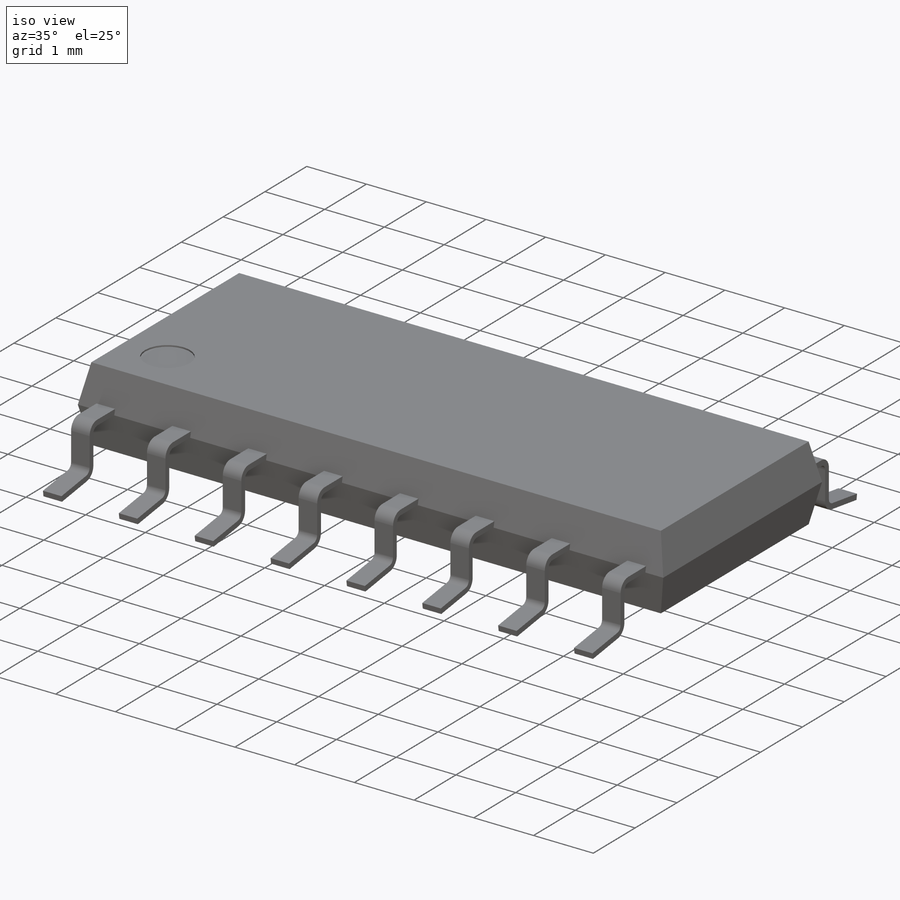
[diagram: iso view]
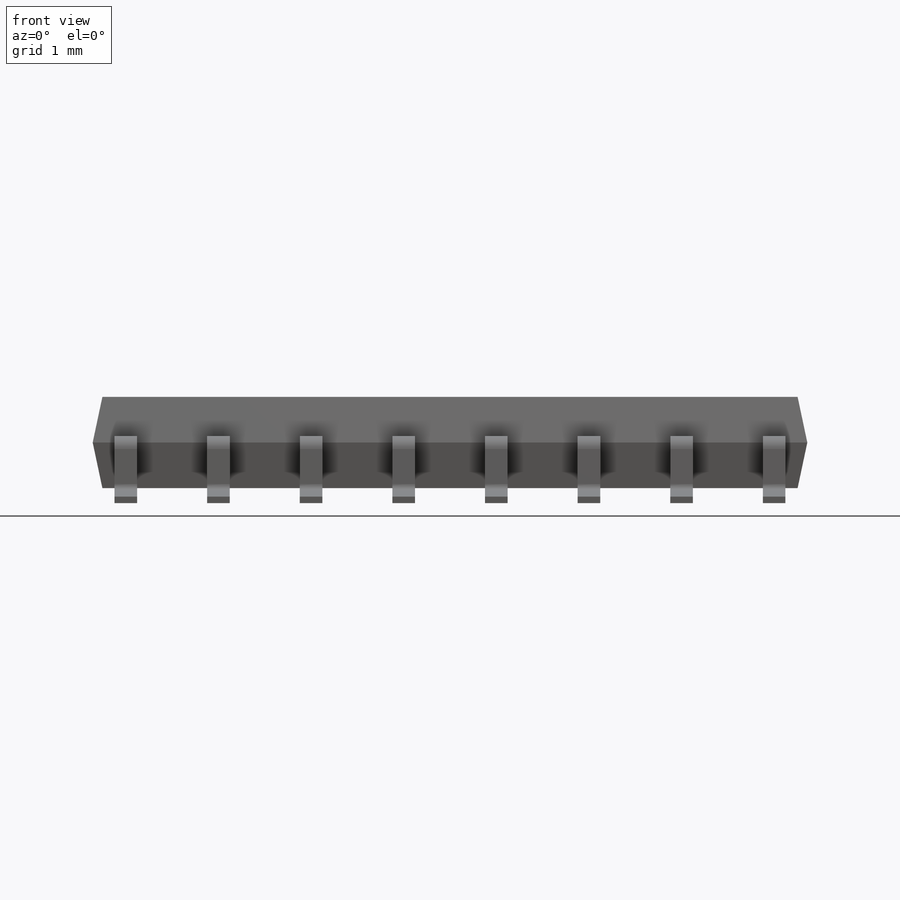
[diagram: front view]
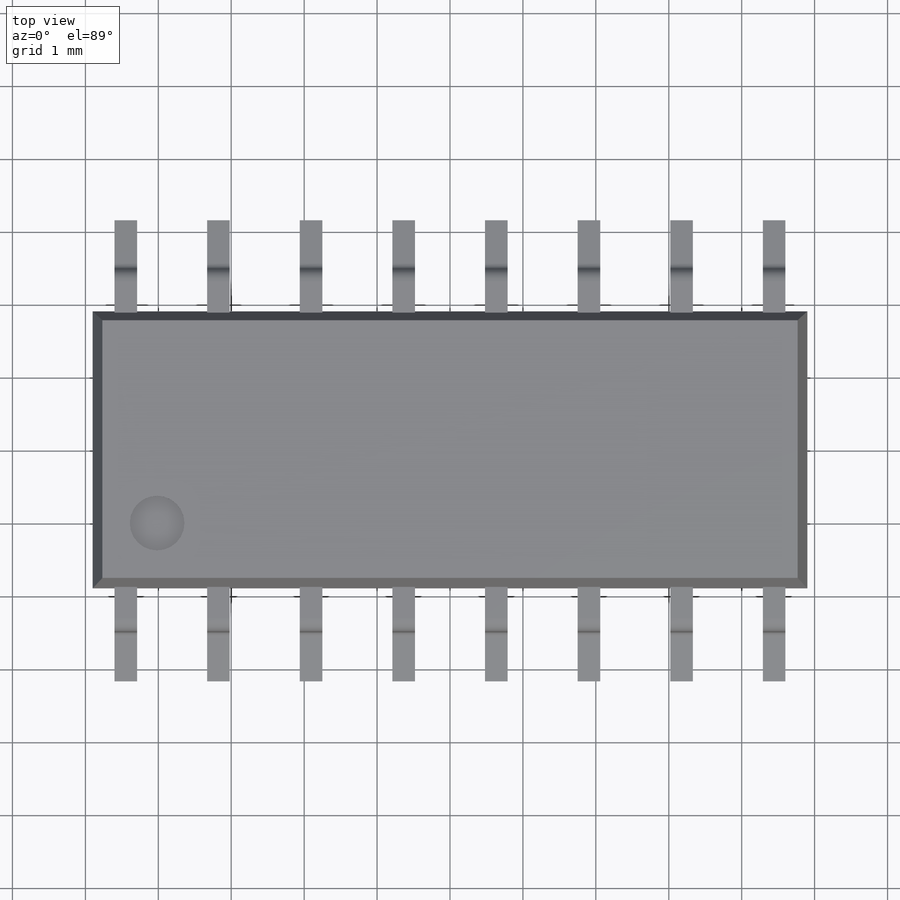
[diagram: top view]
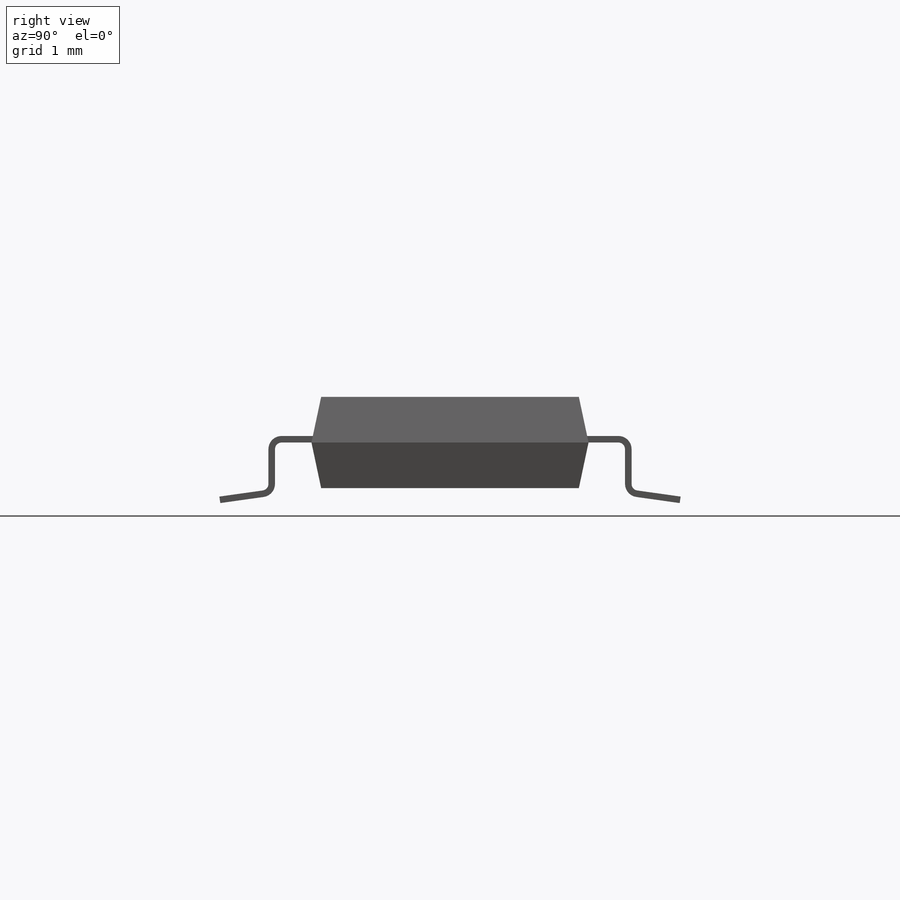
[diagram: right view]
SOLIDWORKS PART (.sldprt)
format: sldprt  version: not decoded by parser v0  size: 1,533,952 bytes
history: native  units: mm
features: sketch x86, sheet_metal_op x44, plane x3, pattern_linear x2, material x1, extrude x1, cut_extrude x1 + 40 further entries (+13 scaffold rows collapsed; 40 parser-record rows omitted)
feature tree (231):
  scaffold x13  (default folders/planes/origin — collapsed)
  material  "Material <not specified>"
  sketch  "Sketch1"  dims[D1=9.8mm D2=3.8mm]
  extrude  "Boss-Extrude1"  Depth=0.625mm
  plane  "Plane1"
  plane  "Plane2"
  plane  "Plane3"  Offset=0.635mm
  sketch  "Sketch2"  dims[c1.D1=~1710.422667mm c1.D2=0.1mm c1.D3=0.5mm c1.D4=0.75mm c1.D5=0.1mm c2.D1=0.09mm c2.D2=0.5 c2.D3=0.0deg c2.D6=~28.64789deg]
  sheet_metal_op  "Base-Flange1"
  sheet_metal_op  "BaseBend2"
  pattern_linear  "LPattern1"  Count1=1 Count2=2 Spacing1=0.09mm Spacing2=1570.796327mm
  sketch  "Sketch58"  dims[D1=~1710.422667mm D2=0.75mm D3=0.5mm D4=0.1mm D5=0.1mm Base-Flange2=0.0]
  sheet_metal_op  "BaseBend3"
  sheet_metal_op  "BaseBend4"
  pattern_linear  "LPattern2"  Count1=1 Count2=2 Spacing1=0.09mm Spacing2=1570.796327mm
  sketch  "Sketch87"  dims[D1=0.75mm D2=0.75mm D3=0.75mm]
  cut_extrude  "Cut-Extrude1"  Depth=0.025mm
  sketch  "Bend-Lines1"
  sketch  "Bounding-Box1"
  sheet_metal_op  "Sheet-Metal2"
  "Flat-Pattern2"
  sketch  "Bend-Lines2"
  sketch  "Bounding-Box2"
  parser-record x40  (decoder bookkeeping rows leaked as tree rows — omitted from the tree; the rows remain in map.json)
  sheet_metal_op  "Sheet-Metal3"
  "Flat-Pattern3"
  sketch  "Bend-Lines3"
  sketch  "Bounding-Box3"
  sheet_metal_op  "Sheet-Metal4"
  "Flat-Pattern4"
  sketch  "Bend-Lines4"
  sketch  "Bounding-Box4"
  sheet_metal_op  "Sheet-Metal5"
  "Flat-Pattern5"
  sketch  "Bend-Lines5"
  sketch  "Bounding-Box5"
  sheet_metal_op  "Sheet-Metal6"
  "Flat-Pattern6"
  sketch  "Bend-Lines6"
  sketch  "Bounding-Box6"
  sheet_metal_op  "Sheet-Metal7"
  "Flat-Pattern7"
  sketch  "Bend-Lines7"
  sketch  "Bounding-Box7"
  sheet_metal_op  "Sheet-Metal8"
  "Flat-Pattern8"
  sketch  "Bend-Lines8"
  sketch  "Bounding-Box8"
  sheet_metal_op  "Sheet-Metal9"
  "Flat-Pattern9"
  sketch  "Bend-Lines9"
  sketch  "Bounding-Box9"
  sheet_metal_op  "Sheet-Metal10"
  "Flat-Pattern10"
  sketch  "Bend-Lines10"
  sketch  "Bounding-Box10"
  sheet_metal_op  "Sheet-Metal11"
  "Flat-Pattern11"
  sketch  "Bend-Lines11"
  sketch  "Bounding-Box11"
  sheet_metal_op  "Sheet-Metal12"
  "Flat-Pattern12"
  sketch  "Bend-Lines12"
  sketch  "Bounding-Box12"
  sheet_metal_op  "Sheet-Metal13"
  "Flat-Pattern13"
  sketch  "Bend-Lines13"
  sketch  "Bounding-Box13"
  sheet_metal_op  "Sheet-Metal14"
  "Flat-Pattern14"
  sketch  "Bend-Lines14"
  sketch  "Bounding-Box14"
  sheet_metal_op  "Sheet-Metal15"
  "Flat-Pattern15"
  sketch  "Bend-Lines15"
  sketch  "Bounding-Box15"
  sheet_metal_op  "Sheet-Metal16"
  "Flat-Pattern16"
  sketch  "Bend-Lines16"
  sketch  "Bounding-Box16"
  sheet_metal_op  "Sheet-Metal17"
  "Flat-Pattern17"
  sketch  "Bend-Lines17"
  sketch  "Bounding-Box17"
  sheet_metal_op  "Sheet-Metal18"
  "Flat-Pattern18"
  sketch  "Bend-Lines18"
  sketch  "Bounding-Box18"
  sheet_metal_op  "Sheet-Metal19"
  "Flat-Pattern19"
  sketch  "Bend-Lines19"
  sketch  "Bounding-Box19"
  sheet_metal_op  "Sheet-Metal20"
  "Flat-Pattern20"
  sketch  "Bend-Lines20"
  sketch  "Bounding-Box20"
  sheet_metal_op  "Sheet-Metal21"
  "Flat-Pattern21"
  sketch  "Bend-Lines21"
  sketch  "Bounding-Box21"
  sheet_metal_op  "Sheet-Metal22"
  "Flat-Pattern22"
  sketch  "Bend-Lines22"
  sketch  "Bounding-Box22"
  sheet_metal_op  "Sheet-Metal23"
  "Flat-Pattern23"
  sketch  "Bend-Lines23"
  sketch  "Bounding-Box23"
  sheet_metal_op  "Sheet-Metal24"
  "Flat-Pattern24"
  sketch  "Bend-Lines24"
  sketch  "Bounding-Box24"
  sheet_metal_op  "Sheet-Metal25"
  "Flat-Pattern25"
  sketch  "Bend-Lines25"
  sketch  "Bounding-Box25"
  sheet_metal_op  "Sheet-Metal26"
  "Flat-Pattern26"
  sketch  "Bend-Lines26"
  sketch  "Bounding-Box26"
  sheet_metal_op  "Sheet-Metal27"
  "Flat-Pattern27"
  sketch  "Bend-Lines27"
  sketch  "Bounding-Box27"
  sheet_metal_op  "Sheet-Metal28"
  "Flat-Pattern28"
  sketch  "Bend-Lines28"
  sketch  "Bounding-Box28"
  sheet_metal_op  "Sheet-Metal29"
  "Flat-Pattern29"
  sketch  "Bend-Lines29"
  sketch  "Bounding-Box29"
  sheet_metal_op  "Sheet-Metal30"
  "Flat-Pattern30"
  sketch  "Bend-Lines30"
  sketch  "Bounding-Box30"
  sheet_metal_op  "Sheet-Metal31"
  "Flat-Pattern31"
  sketch  "Bend-Lines31"
  sketch  "Bounding-Box31"
  sheet_metal_op  "Sheet-Metal32"
  "Flat-Pattern32"
  sketch  "Bend-Lines32"
  sketch  "Bounding-Box32"
  sheet_metal_op  "Sheet-Metal33"
  "Flat-Pattern33"
  sketch  "Bend-Lines33"
  sketch  "Bounding-Box33"
  sheet_metal_op  "Sheet-Metal34"
  "Flat-Pattern34"
  sketch  "Bend-Lines34"
  sketch  "Bounding-Box34"
  sheet_metal_op  "Sheet-Metal35"
  "Flat-Pattern35"
  sketch  "Bend-Lines35"
  sketch  "Bounding-Box35"
  sheet_metal_op  "Sheet-Metal36"
  "Flat-Pattern36"
  sketch  "Bend-Lines36"
  sketch  "Bounding-Box36"
  sheet_metal_op  "Sheet-Metal37"
  "Flat-Pattern37"
  sketch  "Bend-Lines37"
  sketch  "Bounding-Box37"
  sheet_metal_op  "Sheet-Metal38"
  "Flat-Pattern38"
  sketch  "Bend-Lines38"
  sketch  "Bounding-Box38"
  sheet_metal_op  "Sheet-Metal39"
  "Flat-Pattern39"
  sketch  "Bend-Lines39"
  sketch  "Bounding-Box39"
  sheet_metal_op  "Sheet-Metal40"
  "Flat-Pattern40"
  sketch  "Bend-Lines40"
  sketch  "Bounding-Box40"
  sheet_metal_op  "Sheet-Metal41"
  "Flat-Pattern41"
  sketch  "Bend-Lines41"
  sketch  "Bounding-Box41"
decode coverage: 8 of 134 modeling features carry decoded parameters; 40 rows unclassified (native names shown)
note: ~ marks probable driven/reference dimensions
note: suppression state not decoded; provenance and decode notes live in map.json
